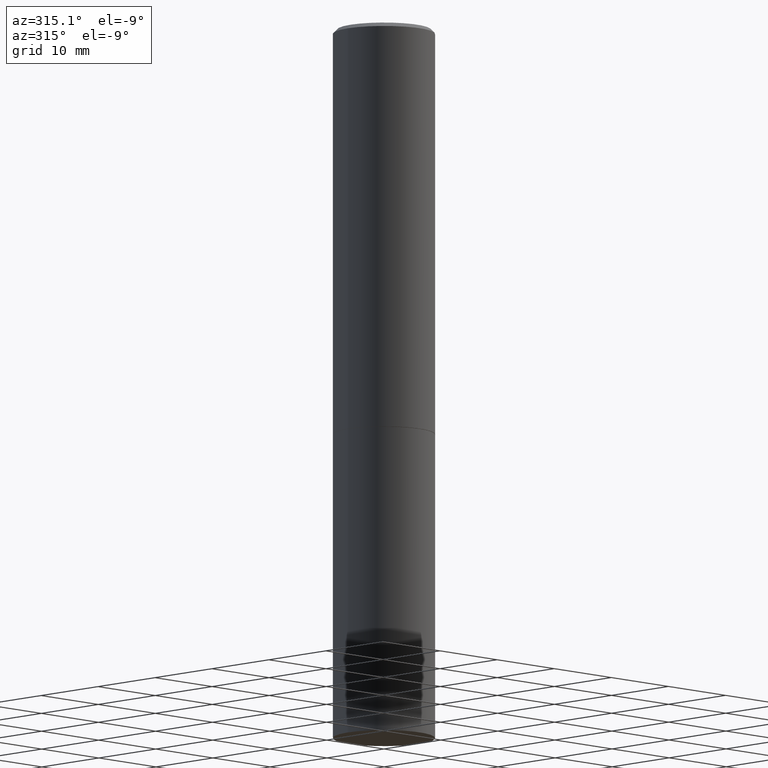
[diagram: clean part render]
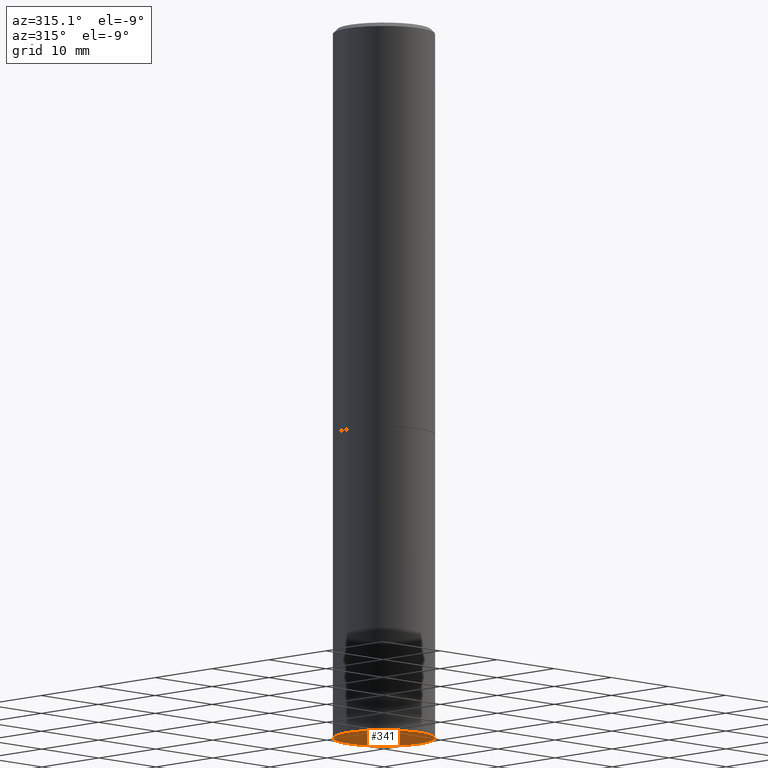
[diagram: same view with one face highlighted and labeled with its STEP entity id]
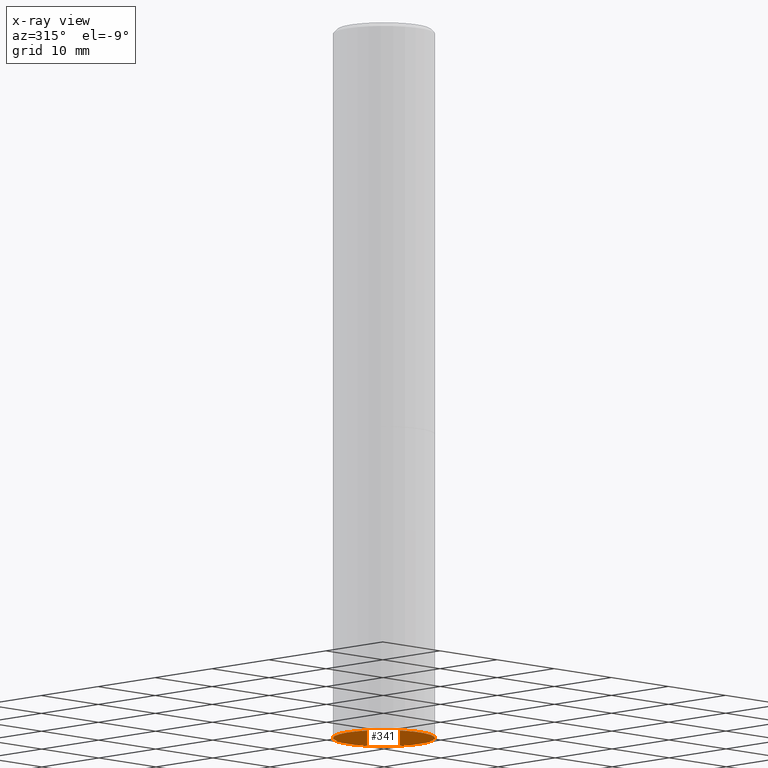
[diagram: x-ray of the same camera — body ghosted, the highlighted face saturated]
A machine part, auxiliary view. The second image highlights one B-rep face of the part: STEP entity #341.
The next image is the same camera in x-ray: the body ghosted, the highlighted face saturated — about 0% of this face is hidden behind the body in this view.
In plain terms, the highlighted planar face has unit normal (0, -0, -1).
Its self-contained STEP definition (entity closure, byte-faithful):
#22 = ORIENTED_EDGE ( 'NONE', *, *, #293, .F. ) ;
#30 = CARTESIAN_POINT ( 'NONE',  ( 8.559140821647976968E-29, -1.222018468595100934E-14, -3.500000000000000000 ) ) ;
#36 = AXIS2_PLACEMENT_3D ( 'NONE', #181, #118, #228 ) ;
#39 = ORIENTED_EDGE ( 'NONE', *, *, #321, .F. ) ;
#42 = VERTEX_POINT ( 'NONE', #56 ) ;
#56 = CARTESIAN_POINT ( 'NONE',  ( 0.2500000000000000000, -1.396592535537257602E-14, -3.500000000000000000 ) ) ;
#75 = PLANE ( 'NONE',  #242 ) ;
#98 = DIRECTION ( 'NONE',  ( 1.000000000000000000, -6.982962677686270655E-15, 0.000000000000000000 ) ) ;
#118 = DIRECTION ( 'NONE',  ( -2.445468806185136597E-29, 3.491481338843145583E-15, 1.000000000000000000 ) ) ;
#128 = CARTESIAN_POINT ( 'NONE',  ( 1.745740669421652072E-15, 0.2499999999999877598, -3.500000000000000888 ) ) ;
#160 = CIRCLE ( 'NONE', #327, 0.2500000000000000000 ) ;
#179 = CIRCLE ( 'NONE', #36, 0.2500000000000000000 ) ;
#181 = CARTESIAN_POINT ( 'NONE',  ( 8.559140821647976968E-29, -1.222018468595100934E-14, -3.500000000000000000 ) ) ;
#189 = VERTEX_POINT ( 'NONE', #246 ) ;
#216 = DIRECTION ( 'NONE',  ( -2.445468806185136597E-29, 3.491481338843145583E-15, 1.000000000000000000 ) ) ;
#228 = DIRECTION ( 'NONE',  ( 1.000000000000000000, -6.982962677686270655E-15, 0.000000000000000000 ) ) ;
#239 = DIRECTION ( 'NONE',  ( 2.438088387897960049E-29, -3.491481338843145188E-15, -1.000000000000000000 ) ) ;
#242 = AXIS2_PLACEMENT_3D ( 'NONE', #128, #239, #258 ) ;
#246 = CARTESIAN_POINT ( 'NONE',  ( -0.2500000000000000000, -7.825216842418397817E-15, -3.500000000000000000 ) ) ;
#258 = DIRECTION ( 'NONE',  ( -1.000000000000000000, 6.982962677686265922E-15, -4.876176775795935793E-29 ) ) ;
#287 = EDGE_LOOP ( 'NONE', ( #22, #39 ) ) ;
#293 = EDGE_CURVE ( 'NONE', #42, #189, #179, .T. ) ;
#321 = EDGE_CURVE ( 'NONE', #189, #42, #160, .T. ) ;
#327 = AXIS2_PLACEMENT_3D ( 'NONE', #30, #216, #98 ) ;
#328 = FACE_OUTER_BOUND ( 'NONE', #287, .T. ) ;
#341 = ADVANCED_FACE ( 'NONE', ( #328 ), #75, .T. ) ;